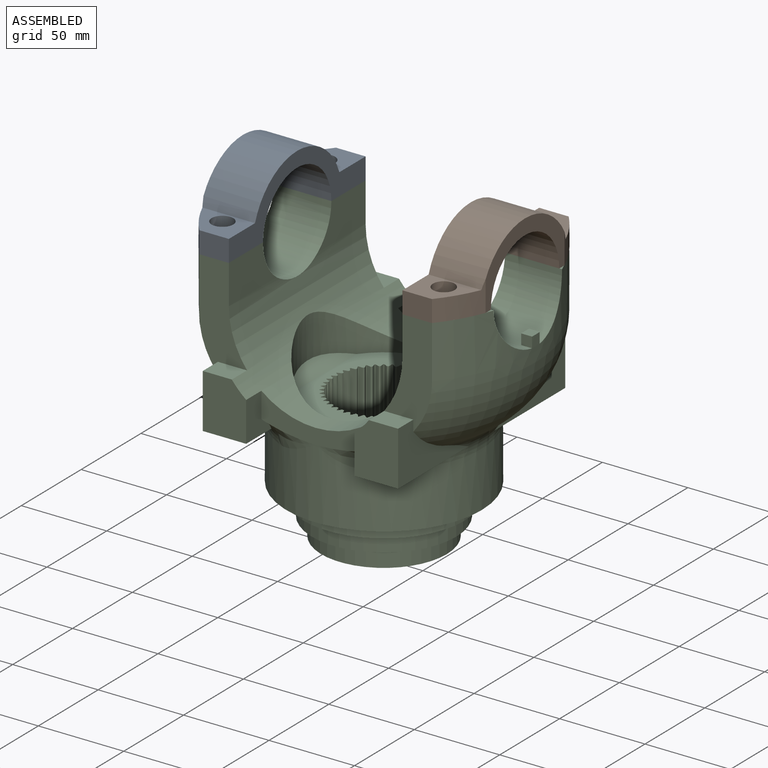
[diagram: assembled view]
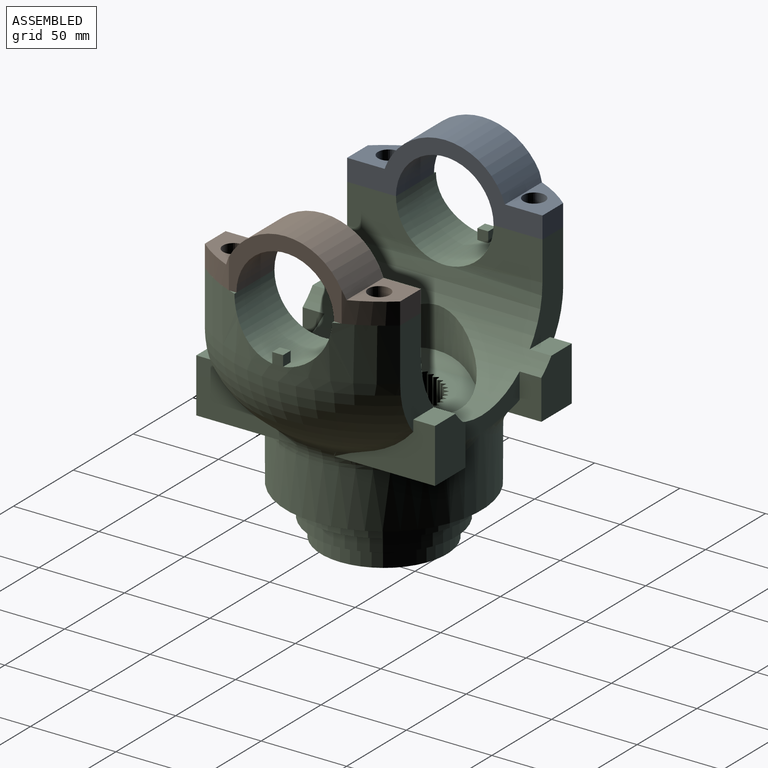
[diagram: assembled view, second angle]
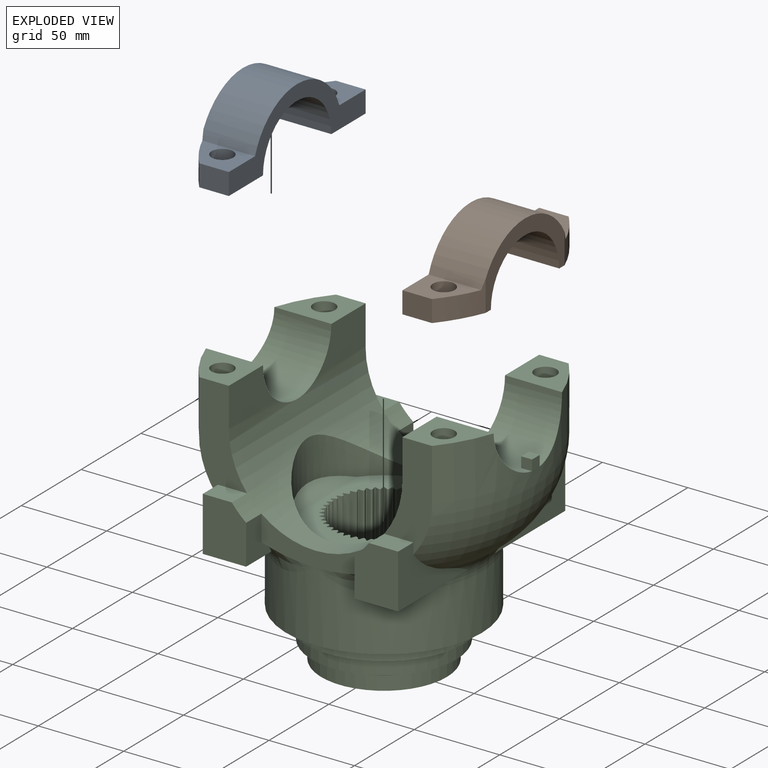
[diagram: exploded view]
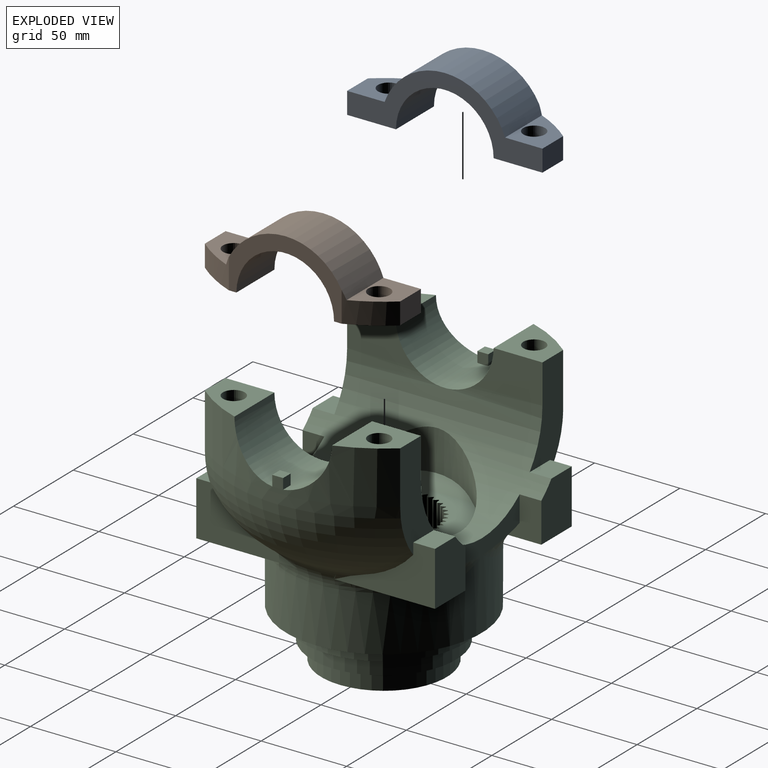
[diagram: exploded view, second angle]
ASSEMBLY  parts=3 mates=2
PART A: 14 faces, bbox 114.3x31.8x37.5 mm
  f0: plane 31.75x28.58mm, normal (0,0,-1), area 627.1mm2, adj f1,f3,f4,f5,f6,f13
  f1: plane 17.3x12.7mm, normal (1,0,0), area 219.7mm2, adj f0,f2,f4,f6
  f2: plane 30.82x21.9mm, normal (0,0,1), area 416.3mm2, adj f1,f4,f5,f6,f12
  f3: cylinder r=28.57mm len=57.15mm, axis (0,1,0), area 2850.2mm2, adj f0,f4,f9,f13
  f4: plane 114.3x37.47mm, normal (0,1,0), area 1440.8mm2, adj f0,f1,f2,f3,f7,f8,f9,f12
  f5: cylinder r=6.35mm len=12.7mm, axis (0,0,1), area 506.7mm2, adj f0,f2
  f6: cylinder r=88.9mm len=24.15mm, axis (0,0,1), area 365.5mm2, adj f0,f1,f2,f12,f13
  f7: plane 30.82x21.9mm, normal (0,0,1), area 416.3mm2, adj f4,f8,f10,f11,f12
  f8: plane 17.3x12.7mm, normal (-1,0,0), area 219.7mm2, adj f4,f7,f9,f11
  f9: plane 31.75x28.58mm, normal (0,0,-1), area 627.1mm2, adj f3,f4,f8,f10,f11,f13
  f10: cylinder r=6.35mm len=12.7mm, axis (0,0,1), area 506.7mm2, adj f7,f9
  f11: cylinder r=88.9mm len=24.15mm, axis (0,0,1), area 365.5mm2, adj f7,f8,f9,f12,f13
  f12: cylinder r=37.46mm len=70.49mm, axis (0,1,0), area 2908.8mm2, adj f2,f4,f6,f7,f11,f13
  f13: plane 66x37.47mm, normal (0,-1,0), area 815.2mm2, adj f0,f3,f6,f9,f11,f12
PART B: same geometry as A
PART C: 264 faces, bbox 184.2x146.9x158.8 mm
  f0: plane 88.9x70.29mm, normal (0,0,1), area 2752.6mm2, adj f1,f2,f78,f79,f81,f82,f84,f85
  f1: bspline ~114.3x14.43mm, area 284.9mm2, adj f0,f2
  f2: cylinder r=44.45mm len=88.9mm, axis (0,0,1), area 3908.9mm2, adj f0,f1,f3,f78
  f3: cylinder r=50.8mm len=139.7mm, axis (0,-1,0), area 11469.6mm2, adj f2,f4,f55,f56,f57,f58,f59,f60
  f4: plane 40.01x22.86mm, normal (-1,0,0), area 731.9mm2, adj f3,f5,f55,f77
  f5: plane 33.38x28.58mm, normal (0,0,1), area 630.8mm2, adj f4,f6,f53,f55,f77
  f6: cylinder r=88.9mm len=114.3mm, axis (0,0,-1), area 2594.9mm2, adj f5,f7,f9,f10,f11,f14,f55,f57
  f7: plane 6.29x6.17mm, normal (0,-1,0), area 38.8mm2, adj f6,f8,f9,f55
  f8: plane 6.35x6.35mm, normal (-1,0,0), area 39.9mm2, adj f7,f9,f10,f55
  f9: plane 6.35x6.35mm, normal (0,0,1), area 40.2mm2, adj f6,f7,f8,f10
  f10: plane 6.29x6.17mm, normal (0,1,0), area 38.8mm2, adj f6,f8,f9,f55
  f11: plane 33.38x28.58mm, normal (0,0,1), area 630.8mm2, adj f6,f12,f55,f56,f57
  f12: cylinder r=6.35mm len=25.4mm, axis (0,0,1), area 1013.4mm2, adj f11,f13
  f13: plane 12.7x12.7mm, normal (0,0,1), area 126.7mm2, adj f12
  f14: torus R=31.26mm, axis (0,0,-1), area 6248.6mm2, adj f6,f15,f51,f52,f57,f77
  f15: torus R=72.44mm, axis (0,0,-1), area 1183mm2, adj f14,f16,f17,f18,f19,f48,f49,f50
  f16: plane 58.95x25.4mm, normal (0,0,-1), area 874.1mm2, adj f15,f51,f74,f75
  f17: torus R=31.26mm, axis (0,0,-1), area 3.7mm2, adj f15,f73,f74
  f18: bspline ~31.35x13.59mm, area 129.5mm2, adj f15,f19,f73
  f19: cylinder r=57.15mm len=114.3mm, axis (0,0,-1), area 12111.9mm2, adj f15,f18,f20,f27,f46,f47,f48
  f20: plane 114.3x114.3mm, normal (0,0,-1), area 3324mm2, adj f19,f21
  f21: cylinder r=46.99mm len=93.98mm, axis (0,0,-1), area 2474.8mm2, adj f20,f22
  f22: plane 93.98x93.98mm, normal (0,0,-1), area 1324.7mm2, adj f21,f23
  f23: cylinder r=42.27mm len=84.53mm, axis (0,0,-1), area 2563.2mm2, adj f22,f24
  f24: plane 84.53x84.53mm, normal (0,0,-1), area 1356.5mm2, adj f23,f25
  f25: cylinder r=36.8mm len=73.61mm, axis (0,0,-1), area 2467mm2, adj f24,f26
  f26: plane 73.61x73.61mm, normal (0,0,-1), area 1243.7mm2, adj f25,f262
  f27: torus R=72.44mm, axis (0,0,-1), area 1183mm2, adj f19,f28,f29,f30,f31,f32,f33,f45
  f28: plane 58.95x25.4mm, normal (0,0,-1), area 874.1mm2, adj f27,f45,f62,f63
  f29: torus R=31.26mm, axis (0,0,-1), area 3.7mm2, adj f27,f61,f62
  f30: torus R=31.26mm, axis (0,0,-1), area 3.7mm2, adj f27,f72,f73
  f31: plane 58.95x25.4mm, normal (0,0,-1), area 874.1mm2, adj f27,f32,f71,f72
  f32: plane 64.88x37.68mm, normal (-1,0,0), area 878.8mm2, adj f27,f31,f33,f69,f70,f71
  f33: torus R=31.26mm, axis (0,0,-1), area 6248.6mm2, adj f27,f32,f34,f45,f65,f69
  f34: cylinder r=88.9mm len=114.3mm, axis (0,0,-1), area 2594.9mm2, adj f33,f35,f38,f40,f41,f42,f65,f67
  f35: plane 33.38x28.58mm, normal (0,0,1), area 630.8mm2, adj f34,f36,f65,f66,f67
  f36: cylinder r=6.35mm len=25.4mm, axis (0,0,1), area 1013.4mm2, adj f35,f37
  f37: plane 12.7x12.7mm, normal (0,0,1), area 126.7mm2, adj f36
  f38: plane 6.29x6.17mm, normal (0,1,0), area 38.8mm2, adj f34,f39,f40,f67
  f39: plane 6.35x6.35mm, normal (1,0,0), area 39.9mm2, adj f38,f40,f41,f67
  f40: plane 6.35x6.35mm, normal (0,0,1), area 40.2mm2, adj f34,f38,f39,f41
  f41: plane 6.29x6.17mm, normal (0,-1,0), area 38.8mm2, adj f34,f39,f40,f67
  f42: plane 33.38x28.58mm, normal (0,0,1), area 630.8mm2, adj f34,f43,f67,f68,f69
  f43: cylinder r=6.35mm len=25.4mm, axis (0,0,1), area 1013.4mm2, adj f42,f44
  f44: plane 12.7x12.7mm, normal (0,0,1), area 126.7mm2, adj f43
  f45: plane 64.84x37.65mm, normal (-1,0,0), area 878.8mm2, adj f27,f28,f33,f63,f64,f65
  f46: bspline ~31.35x13.59mm, area 129.7mm2, adj f19,f27,f73
  f47: bspline ~31.35x13.59mm, area 129.5mm2, adj f19,f27,f61
  f48: bspline ~31.35x13.59mm, area 129.7mm2, adj f15,f19,f61
  f49: torus R=31.26mm, axis (0,0,-1), area 3.7mm2, adj f15,f60,f61
  f50: plane 58.95x25.4mm, normal (0,0,-1), area 874.1mm2, adj f15,f52,f59,f60
  f51: plane 64.84x37.65mm, normal (1,0,0), area 878.8mm2, adj f14,f15,f16,f75,f76,f77
  f52: plane 64.88x37.68mm, normal (1,0,0), area 878.8mm2, adj f14,f15,f50,f57,f58,f59
  f53: cylinder r=6.35mm len=25.4mm, axis (0,0,1), area 1013.4mm2, adj f5,f54
  f54: plane 12.7x12.7mm, normal (0,0,1), area 126.7mm2, adj f53
  f55: cylinder r=28.57mm len=57.15mm, axis (1,0,0), area 3180.8mm2, adj f3,f4,f5,f6,f7,f8,f10,f11
  f56: plane 40.01x22.86mm, normal (-1,0,0), area 731.9mm2, adj f3,f11,f55,f57
  f57: plane 64.46x31.92mm, normal (0,1,0), area 1007.6mm2, adj f3,f6,f11,f14,f52,f56,f58
  f58: plane 16.99x12.7mm, normal (0,0,1), area 215.8mm2, adj f3,f52,f57,f59
  f59: plane 31.75x25.4mm, normal (0,1,0), area 767.7mm2, adj f3,f50,f52,f58,f60
  f60: plane 23.66x21.54mm, normal (-1,0,0), area 336.7mm2, adj f3,f15,f49,f50,f59,f61
  f61: plane 69.91x26.44mm, normal (0,1,0), area 687.5mm2, adj f3,f29,f47,f48,f49,f60,f62
  f62: plane 23.66x21.54mm, normal (1,0,0), area 336.7mm2, adj f3,f27,f28,f29,f61,f63
  f63: plane 31.75x25.4mm, normal (0,1,0), area 767.7mm2, adj f3,f28,f45,f62,f64
  f64: plane 16.99x12.7mm, normal (0,0,1), area 215.8mm2, adj f3,f45,f63,f65
  f65: plane 64.46x31.92mm, normal (0,1,0), area 1007.6mm2, adj f3,f33,f34,f35,f45,f64,f66
  f66: plane 40.01x22.86mm, normal (1,0,0), area 731.9mm2, adj f3,f35,f65,f67
  f67: cylinder r=28.57mm len=57.15mm, axis (1,0,0), area 3180.8mm2, adj f3,f34,f35,f38,f39,f41,f42,f66
  f68: plane 40.01x22.86mm, normal (1,0,0), area 731.9mm2, adj f3,f42,f67,f69
  f69: plane 64.46x31.92mm, normal (0,-1,0), area 1007.6mm2, adj f3,f32,f33,f34,f42,f68,f70
  f70: plane 16.99x12.7mm, normal (0,0,1), area 215.8mm2, adj f3,f32,f69,f71
  f71: plane 31.75x25.4mm, normal (0,-1,0), area 767.7mm2, adj f3,f31,f32,f70,f72
  f72: plane 23.66x21.54mm, normal (1,0,0), area 336.7mm2, adj f3,f27,f30,f31,f71,f73
  f73: plane 69.91x26.44mm, normal (0,-1,0), area 687.5mm2, adj f3,f17,f18,f30,f46,f72,f74
  f74: plane 23.66x21.54mm, normal (-1,0,0), area 336.7mm2, adj f3,f15,f16,f17,f73,f75
  f75: plane 31.75x25.4mm, normal (0,-1,0), area 767.7mm2, adj f3,f16,f51,f74,f76
  f76: plane 16.99x12.7mm, normal (0,0,1), area 215.8mm2, adj f3,f51,f75,f77
  f77: plane 64.46x31.92mm, normal (0,-1,0), area 1007.6mm2, adj f3,f4,f5,f6,f14,f51,f76
  f78: bspline ~114.3x8.32mm, area 0mm2, adj f0,f2
  f79: plane 63.5x0.86mm, normal (0.4,-0.92,0), area 59.7mm2, adj f0,f80,f81,f263
  f80: plane 3.49x2.97mm, normal (0,0,-1), area 5.4mm2, adj f79,f81,f262,f263
  f81: plane 63.5x2.2mm, normal (-0.55,-0.83,0), area 167.1mm2, adj f0,f79,f80,f262
  f82: plane 63.5x2.63mm, normal (1,-0.03,0), area 167.1mm2, adj f0,f83,f84,f262
  f83: plane 3.26x3.12mm, normal (0,0,-1), area 5.4mm2, adj f82,f84,f85,f262
  f84: plane 63.5x0.8mm, normal (0.52,-0.85,0), area 59.7mm2, adj f0,f82,f83,f85
  f85: plane 63.5x2.37mm, normal (-0.43,-0.9,0), area 167.1mm2, adj f0,f83,f84,f262
  f86: plane 63.5x2.62mm, normal (0.99,0.11,0), area 167.1mm2, adj f0,f87,f88,f262
  f87: plane 3.23x3.21mm, normal (0,0,-1), area 5.4mm2, adj f86,f88,f89,f262
  f88: plane 63.5x0.73mm, normal (0.63,-0.78,0), area 59.7mm2, adj f0,f86,f87,f89
  f89: plane 63.5x2.51mm, normal (-0.31,-0.95,0), area 167.1mm2, adj f0,f87,f88,f262
  f90: plane 63.5x2.55mm, normal (0.97,0.24,0), area 167.1mm2, adj f0,f91,f92,f262
  f91: plane 3.24x3.23mm, normal (0,0,-1), area 5.4mm2, adj f90,f92,f93,f262
  f92: plane 63.5x0.69mm, normal (0.73,-0.68,0), area 59.7mm2, adj f0,f90,f91,f93
  f93: plane 63.5x2.59mm, normal (-0.17,-0.98,0), area 167.1mm2, adj f0,f91,f92,f262
  f94: plane 63.5x2.44mm, normal (0.93,0.37,0), area 167.1mm2, adj f0,f95,f96,f262
  f95: plane 3.21x3.17mm, normal (0,0,-1), area 5.4mm2, adj f94,f96,f97,f262
  f96: plane 63.5x0.77mm, normal (0.82,-0.58,0), area 59.7mm2, adj f0,f94,f95,f97
  f97: plane 63.5x2.63mm, normal (-0.04,-1,0), area 167.1mm2, adj f0,f95,f96,f262
  f98: plane 63.5x2.29mm, normal (0.87,0.49,0), area 167.1mm2, adj f0,f99,f100,f262
  f99: plane 3.38x3.05mm, normal (0,0,-1), area 5.4mm2, adj f98,f100,f101,f262
  f100: plane 63.5x0.83mm, normal (0.89,-0.46,0), area 59.7mm2, adj f0,f98,f99,f101
  f101: plane 63.5x2.62mm, normal (0.1,-1,0), area 167.1mm2, adj f0,f99,f100,f262
  f102: plane 63.5x2.09mm, normal (0.79,0.61,0), area 167.1mm2, adj f0,f103,f104,f262
  f103: plane 3.59x2.87mm, normal (0,0,-1), area 5.4mm2, adj f102,f104,f105,f262
  f104: plane 63.5x0.89mm, normal (0.94,-0.33,0), area 59.7mm2, adj f0,f102,f103,f105
  f105: plane 63.5x2.56mm, normal (0.23,-0.97,0), area 167.1mm2, adj f0,f103,f104,f262
  f106: plane 63.5x1.87mm, normal (0.7,0.71,0), area 167.1mm2, adj f0,f107,f108,f262
  f107: plane 3.73x2.64mm, normal (0,0,-1), area 5.4mm2, adj f106,f108,f109,f262
  f108: plane 63.5x0.92mm, normal (0.98,-0.2,0), area 59.7mm2, adj f0,f106,f107,f109
  f109: plane 63.5x2.45mm, normal (0.36,-0.93,0), area 167.1mm2, adj f0,f107,f108,f262
  f110: plane 63.5x2.1mm, normal (0.6,0.8,0), area 167.1mm2, adj f0,f111,f112,f262
  f111: plane 3.8x2.36mm, normal (0,0,-1), area 5.4mm2, adj f110,f112,f113,f262
  f112: plane 63.5x0.94mm, normal (1,-0.07,0), area 59.7mm2, adj f0,f110,f111,f113
  f113: plane 63.5x2.3mm, normal (0.49,-0.87,0), area 167.1mm2, adj f0,f111,f112,f262
  f114: plane 63.5x2.3mm, normal (0.49,0.87,0), area 167.1mm2, adj f0,f115,f116,f262
  f115: plane 3.8x2.36mm, normal (0,0,-1), area 5.4mm2, adj f114,f116,f117,f262
  f116: plane 63.5x0.94mm, normal (1,0.07,0), area 59.7mm2, adj f0,f114,f115,f117
  f117: plane 63.5x2.1mm, normal (0.6,-0.8,0), area 167.1mm2, adj f0,f115,f116,f262
  f118: plane 63.5x2.45mm, normal (0.36,0.93,0), area 167.1mm2, adj f0,f119,f120,f262
  f119: plane 3.73x2.64mm, normal (0,0,-1), area 5.4mm2, adj f118,f120,f121,f262
  f120: plane 63.5x0.92mm, normal (0.98,0.2,0), area 59.7mm2, adj f0,f118,f119,f121
  f121: plane 63.5x1.87mm, normal (0.7,-0.71,0), area 167.1mm2, adj f0,f119,f120,f262
  f122: plane 63.5x2.56mm, normal (0.23,0.97,0), area 167.1mm2, adj f0,f123,f124,f262
  f123: plane 3.59x2.87mm, normal (0,0,-1), area 5.4mm2, adj f122,f124,f125,f262
  f124: plane 63.5x0.89mm, normal (0.94,0.33,0), area 59.7mm2, adj f0,f122,f123,f125
  f125: plane 63.5x2.09mm, normal (0.79,-0.61,0), area 167.1mm2, adj f0,f123,f124,f262
  f126: plane 63.5x2.62mm, normal (0.1,1,0), area 167.1mm2, adj f0,f127,f128,f262
  f127: plane 3.38x3.05mm, normal (0,0,-1), area 5.4mm2, adj f126,f128,f129,f262
  f128: plane 63.5x0.83mm, normal (0.89,0.46,0), area 59.7mm2, adj f0,f126,f127,f129
  f129: plane 63.5x2.29mm, normal (0.87,-0.49,0), area 167.1mm2, adj f0,f127,f128,f262
  f130: plane 63.5x2.63mm, normal (-0.04,1,0), area 167.1mm2, adj f0,f131,f132,f262
  f131: plane 3.21x3.17mm, normal (0,0,-1), area 5.4mm2, adj f130,f132,f133,f262
  f132: plane 63.5x0.77mm, normal (0.82,0.58,0), area 59.7mm2, adj f0,f130,f131,f133
  f133: plane 63.5x2.44mm, normal (0.93,-0.37,0), area 167.1mm2, adj f0,f131,f132,f262
  f134: plane 63.5x2.59mm, normal (-0.17,0.98,0), area 167.1mm2, adj f0,f135,f136,f262
  f135: plane 3.24x3.23mm, normal (0,0,-1), area 5.4mm2, adj f134,f136,f137,f262
  f136: plane 63.5x0.69mm, normal (0.73,0.68,0), area 59.7mm2, adj f0,f134,f135,f137
  f137: plane 63.5x2.55mm, normal (0.97,-0.24,0), area 167.1mm2, adj f0,f135,f136,f262
  f138: plane 63.5x2.51mm, normal (-0.31,0.95,0), area 167.1mm2, adj f0,f139,f140,f262
  f139: plane 3.23x3.21mm, normal (0,0,-1), area 5.4mm2, adj f138,f140,f141,f262
  f140: plane 63.5x0.73mm, normal (0.63,0.78,0), area 59.7mm2, adj f0,f138,f139,f141
  f141: plane 63.5x2.62mm, normal (0.99,-0.11,0), area 167.1mm2, adj f0,f139,f140,f262
  f142: plane 63.5x2.37mm, normal (-0.43,0.9,0), area 167.1mm2, adj f0,f143,f144,f262
  f143: plane 3.26x3.12mm, normal (0,0,-1), area 5.4mm2, adj f142,f144,f145,f262
  f144: plane 63.5x0.8mm, normal (0.52,0.85,0), area 59.7mm2, adj f0,f142,f143,f145
  f145: plane 63.5x2.63mm, normal (1,0.03,0), area 167.1mm2, adj f0,f143,f144,f262
  f146: plane 63.5x2.2mm, normal (-0.55,0.83,0), area 167.1mm2, adj f0,f147,f148,f262
  f147: plane 3.49x2.97mm, normal (0,0,-1), area 5.4mm2, adj f146,f148,f149,f262
  f148: plane 63.5x0.86mm, normal (0.4,0.92,0), area 59.7mm2, adj f0,f146,f147,f149
  f149: plane 63.5x2.6mm, normal (0.99,0.17,0), area 167.1mm2, adj f0,f147,f148,f262
  f150: plane 63.5x1.98mm, normal (-0.66,0.75,0), area 167.1mm2, adj f0,f151,f152,f262
  f151: plane 3.67x2.76mm, normal (0,0,-1), area 5.4mm2, adj f150,f152,f153,f262
  f152: plane 63.5x0.91mm, normal (0.27,0.96,0), area 59.7mm2, adj f0,f150,f151,f153
  f153: plane 63.5x2.51mm, normal (0.95,0.3,0), area 167.1mm2, adj f0,f151,f152,f262
  f154: plane 63.5x1.99mm, normal (-0.76,0.65,0), area 167.1mm2, adj f0,f155,f156,f262
  f155: plane 3.77x2.51mm, normal (0,0,-1), area 5.4mm2, adj f154,f156,f157,f262
  f156: plane 63.5x0.93mm, normal (0.14,0.99,0), area 59.7mm2, adj f0,f154,f155,f157
  f157: plane 63.5x2.38mm, normal (0.9,0.43,0), area 167.1mm2, adj f0,f155,f156,f262
  f158: plane 63.5x2.21mm, normal (-0.84,0.55,0), area 167.1mm2, adj f0,f159,f160,f262
  f159: plane 3.81x2.26mm, normal (0,0,-1), area 5.4mm2, adj f158,f160,f161,f262
  f160: plane 63.5x0.94mm, normal (0,1,0), area 59.7mm2, adj f0,f158,f159,f161
  f161: plane 63.5x2.21mm, normal (0.84,0.55,0), area 167.1mm2, adj f0,f159,f160,f262
  f162: plane 63.5x2.38mm, normal (-0.9,0.43,0), area 167.1mm2, adj f0,f163,f164,f262
  f163: plane 3.77x2.51mm, normal (0,0,-1), area 5.4mm2, adj f162,f164,f165,f262
  f164: plane 63.5x0.93mm, normal (-0.14,0.99,0), area 59.7mm2, adj f0,f162,f163,f165
  f165: plane 63.5x1.99mm, normal (0.76,0.65,0), area 167.1mm2, adj f0,f163,f164,f262
  f166: plane 63.5x2.51mm, normal (-0.95,0.3,0), area 167.1mm2, adj f0,f167,f168,f262
  f167: plane 3.67x2.76mm, normal (0,0,-1), area 5.4mm2, adj f166,f168,f169,f262
  f168: plane 63.5x0.91mm, normal (-0.27,0.96,0), area 59.7mm2, adj f0,f166,f167,f169
  f169: plane 63.5x1.98mm, normal (0.66,0.75,0), area 167.1mm2, adj f0,f167,f168,f262
  f170: plane 63.5x2.6mm, normal (-0.99,0.17,0), area 167.1mm2, adj f0,f171,f172,f262
  f171: plane 3.49x2.97mm, normal (0,0,-1), area 5.4mm2, adj f170,f172,f173,f262
  f172: plane 63.5x0.86mm, normal (-0.4,0.92,0), area 59.7mm2, adj f0,f170,f171,f173
  f173: plane 63.5x2.2mm, normal (0.55,0.83,0), area 167.1mm2, adj f0,f171,f172,f262
  f174: plane 63.5x2.63mm, normal (-1,0.03,0), area 167.1mm2, adj f0,f175,f176,f262
  f175: plane 3.26x3.12mm, normal (0,0,-1), area 5.4mm2, adj f174,f176,f177,f262
  f176: plane 63.5x0.8mm, normal (-0.52,0.85,0), area 59.7mm2, adj f0,f174,f175,f177
  f177: plane 63.5x2.37mm, normal (0.43,0.9,0), area 167.1mm2, adj f0,f175,f176,f262
  f178: plane 63.5x2.62mm, normal (-0.99,-0.11,0), area 167.1mm2, adj f0,f179,f180,f262
  f179: plane 3.23x3.21mm, normal (0,0,-1), area 5.4mm2, adj f178,f180,f181,f262
  f180: plane 63.5x0.73mm, normal (-0.63,0.78,0), area 59.7mm2, adj f0,f178,f179,f181
  f181: plane 63.5x2.51mm, normal (0.31,0.95,0), area 167.1mm2, adj f0,f179,f180,f262
  f182: plane 63.5x2.55mm, normal (-0.97,-0.24,0), area 167.1mm2, adj f0,f183,f184,f262
  f183: plane 3.24x3.23mm, normal (0,0,-1), area 5.4mm2, adj f182,f184,f185,f262
  f184: plane 63.5x0.69mm, normal (-0.73,0.68,0), area 59.7mm2, adj f0,f182,f183,f185
  f185: plane 63.5x2.59mm, normal (0.17,0.98,0), area 167.1mm2, adj f0,f183,f184,f262
  f186: plane 63.5x2.44mm, normal (-0.93,-0.37,0), area 167.1mm2, adj f0,f187,f188,f262
  f187: plane 3.21x3.17mm, normal (0,0,-1), area 5.4mm2, adj f186,f188,f189,f262
  f188: plane 63.5x0.77mm, normal (-0.82,0.58,0), area 59.7mm2, adj f0,f186,f187,f189
  f189: plane 63.5x2.63mm, normal (0.04,1,0), area 167.1mm2, adj f0,f187,f188,f262
  f190: plane 63.5x2.29mm, normal (-0.87,-0.49,0), area 167.1mm2, adj f0,f191,f192,f262
  f191: plane 3.38x3.05mm, normal (0,0,-1), area 5.4mm2, adj f190,f192,f193,f262
  f192: plane 63.5x0.83mm, normal (-0.89,0.46,0), area 59.7mm2, adj f0,f190,f191,f193
  f193: plane 63.5x2.62mm, normal (-0.1,1,0), area 167.1mm2, adj f0,f191,f192,f262
  f194: plane 63.5x2.09mm, normal (-0.79,-0.61,0), area 167.1mm2, adj f0,f195,f196,f262
  f195: plane 3.59x2.87mm, normal (0,0,-1), area 5.4mm2, adj f194,f196,f197,f262
  f196: plane 63.5x0.89mm, normal (-0.94,0.33,0), area 59.7mm2, adj f0,f194,f195,f197
  f197: plane 63.5x2.56mm, normal (-0.23,0.97,0), area 167.1mm2, adj f0,f195,f196,f262
  f198: plane 63.5x1.87mm, normal (-0.7,-0.71,0), area 167.1mm2, adj f0,f199,f200,f262
  f199: plane 3.73x2.64mm, normal (0,0,-1), area 5.4mm2, adj f198,f200,f201,f262
  f200: plane 63.5x0.92mm, normal (-0.98,0.2,0), area 59.7mm2, adj f0,f198,f199,f201
  f201: plane 63.5x2.45mm, normal (-0.36,0.93,0), area 167.1mm2, adj f0,f199,f200,f262
  f202: plane 63.5x2.1mm, normal (-0.6,-0.8,0), area 167.1mm2, adj f0,f203,f204,f262
  f203: plane 3.8x2.36mm, normal (0,0,-1), area 5.4mm2, adj f202,f204,f205,f262
  f204: plane 63.5x0.94mm, normal (-1,0.07,0), area 59.7mm2, adj f0,f202,f203,f205
  f205: plane 63.5x2.3mm, normal (-0.49,0.87,0), area 167.1mm2, adj f0,f203,f204,f262
  f206: plane 63.5x2.3mm, normal (-0.49,-0.87,0), area 167.1mm2, adj f0,f207,f208,f262
  f207: plane 3.8x2.36mm, normal (0,0,-1), area 5.4mm2, adj f206,f208,f209,f262
  f208: plane 63.5x0.94mm, normal (-1,-0.07,0), area 59.7mm2, adj f0,f206,f207,f209
  f209: plane 63.5x2.1mm, normal (-0.6,0.8,0), area 167.1mm2, adj f0,f207,f208,f262
  f210: plane 63.5x2.45mm, normal (-0.36,-0.93,0), area 167.1mm2, adj f0,f211,f212,f262
  f211: plane 3.73x2.64mm, normal (0,0,-1), area 5.4mm2, adj f210,f212,f213,f262
  f212: plane 63.5x0.92mm, normal (-0.98,-0.2,0), area 59.7mm2, adj f0,f210,f211,f213
  f213: plane 63.5x1.87mm, normal (-0.7,0.71,0), area 167.1mm2, adj f0,f211,f212,f262
  f214: plane 63.5x2.56mm, normal (-0.23,-0.97,0), area 167.1mm2, adj f0,f215,f216,f262
  f215: plane 3.59x2.87mm, normal (0,0,-1), area 5.4mm2, adj f214,f216,f217,f262
  f216: plane 63.5x0.89mm, normal (-0.94,-0.33,0), area 59.7mm2, adj f0,f214,f215,f217
  f217: plane 63.5x2.09mm, normal (-0.79,0.61,0), area 167.1mm2, adj f0,f215,f216,f262
  f218: plane 63.5x2.62mm, normal (-0.1,-1,0), area 167.1mm2, adj f0,f219,f220,f262
  f219: plane 3.38x3.05mm, normal (0,0,-1), area 5.4mm2, adj f218,f220,f221,f262
  f220: plane 63.5x0.83mm, normal (-0.89,-0.46,0), area 59.7mm2, adj f0,f218,f219,f221
  f221: plane 63.5x2.29mm, normal (-0.87,0.49,0), area 167.1mm2, adj f0,f219,f220,f262
  f222: plane 63.5x2.63mm, normal (0.04,-1,0), area 167.1mm2, adj f0,f223,f224,f262
  f223: plane 3.21x3.17mm, normal (0,0,-1), area 5.4mm2, adj f222,f224,f225,f262
  f224: plane 63.5x0.77mm, normal (-0.82,-0.58,0), area 59.7mm2, adj f0,f222,f223,f225
  f225: plane 63.5x2.44mm, normal (-0.93,0.37,0), area 167.1mm2, adj f0,f223,f224,f262
  f226: plane 63.5x2.59mm, normal (0.17,-0.98,0), area 167.1mm2, adj f0,f227,f228,f262
  f227: plane 3.24x3.23mm, normal (0,0,-1), area 5.4mm2, adj f226,f228,f229,f262
  f228: plane 63.5x0.69mm, normal (-0.73,-0.68,0), area 59.7mm2, adj f0,f226,f227,f229
  f229: plane 63.5x2.55mm, normal (-0.97,0.24,0), area 167.1mm2, adj f0,f227,f228,f262
  f230: plane 63.5x2.51mm, normal (0.31,-0.95,0), area 167.1mm2, adj f0,f231,f232,f262
  f231: plane 3.23x3.21mm, normal (0,0,-1), area 5.4mm2, adj f230,f232,f233,f262
  f232: plane 63.5x0.73mm, normal (-0.63,-0.78,0), area 59.7mm2, adj f0,f230,f231,f233
  f233: plane 63.5x2.62mm, normal (-0.99,0.11,0), area 167.1mm2, adj f0,f231,f232,f262
  f234: plane 63.5x2.37mm, normal (0.43,-0.9,0), area 167.1mm2, adj f0,f235,f236,f262
  f235: plane 3.26x3.12mm, normal (0,0,-1), area 5.4mm2, adj f234,f236,f237,f262
  f236: plane 63.5x0.8mm, normal (-0.52,-0.85,0), area 59.7mm2, adj f0,f234,f235,f237
  f237: plane 63.5x2.63mm, normal (-1,-0.03,0), area 167.1mm2, adj f0,f235,f236,f262
  f238: plane 63.5x2.2mm, normal (0.55,-0.83,0), area 167.1mm2, adj f0,f239,f240,f262
  f239: plane 3.49x2.97mm, normal (0,0,-1), area 5.4mm2, adj f238,f240,f241,f262
  f240: plane 63.5x0.86mm, normal (-0.4,-0.92,0), area 59.7mm2, adj f0,f238,f239,f241
  f241: plane 63.5x2.6mm, normal (-0.99,-0.17,0), area 167.1mm2, adj f0,f239,f240,f262
  f242: plane 63.5x1.98mm, normal (0.66,-0.75,0), area 167.1mm2, adj f0,f243,f244,f262
  f243: plane 3.67x2.76mm, normal (0,0,-1), area 5.4mm2, adj f242,f244,f245,f262
  f244: plane 63.5x0.91mm, normal (-0.27,-0.96,0), area 59.7mm2, adj f0,f242,f243,f245
  f245: plane 63.5x2.51mm, normal (-0.95,-0.3,0), area 167.1mm2, adj f0,f243,f244,f262
  f246: plane 63.5x1.99mm, normal (0.76,-0.65,0), area 167.1mm2, adj f0,f247,f248,f262
  f247: plane 3.77x2.51mm, normal (0,0,-1), area 5.4mm2, adj f246,f248,f249,f262
  f248: plane 63.5x0.93mm, normal (-0.14,-0.99,0), area 59.7mm2, adj f0,f246,f247,f249
  f249: plane 63.5x2.38mm, normal (-0.9,-0.43,0), area 167.1mm2, adj f0,f247,f248,f262
  f250: plane 63.5x2.21mm, normal (0.84,-0.55,0), area 167.1mm2, adj f0,f251,f252,f262
  f251: plane 3.81x2.26mm, normal (0,0,-1), area 5.4mm2, adj f250,f252,f253,f262
  f252: plane 63.5x0.94mm, normal (0,-1,0), area 59.7mm2, adj f0,f250,f251,f253
  f253: plane 63.5x2.21mm, normal (-0.84,-0.55,0), area 167.1mm2, adj f0,f251,f252,f262
  f254: plane 63.5x2.38mm, normal (0.9,-0.43,0), area 167.1mm2, adj f0,f255,f256,f262
  f255: plane 3.77x2.51mm, normal (0,0,-1), area 5.4mm2, adj f254,f256,f257,f262
  f256: plane 63.5x0.93mm, normal (0.14,-0.99,0), area 59.7mm2, adj f0,f254,f255,f257
  f257: plane 63.5x1.99mm, normal (-0.76,-0.65,0), area 167.1mm2, adj f0,f255,f256,f262
  f258: plane 63.5x2.51mm, normal (0.95,-0.3,0), area 167.1mm2, adj f0,f259,f260,f262
  f259: plane 3.67x2.76mm, normal (0,0,-1), area 5.4mm2, adj f258,f260,f261,f262
  f260: plane 63.5x0.91mm, normal (0.27,-0.96,0), area 59.7mm2, adj f0,f258,f259,f261
  f261: plane 63.5x1.98mm, normal (-0.66,-0.75,0), area 167.1mm2, adj f0,f259,f260,f262
  f262: cylinder r=30.96mm len=76.2mm, axis (0,0,-1), area 3688.2mm2, adj f0,f26,f80,f81,f82,f83,f85,f86
  f263: plane 63.5x2.6mm, normal (0.99,-0.17,0), area 167.1mm2, adj f0,f79,f80,f262
PLACE A rot(axis=(0,0,-1),90deg) t=(-70.21,0,152.4)mm
PLACE B rot(axis=(0,0,1),90deg) t=(64.77,0,152.4)mm
PLACE C t=(-2.72,0,0)mm
MATE revolute B.f5 <-> C.f12  axis (0,0,1) through (62.05,42.54,152.4)mm
MATE revolute A.f5 <-> C.f43  axis (0,0,1) through (-67.49,-42.54,152.4)mm
